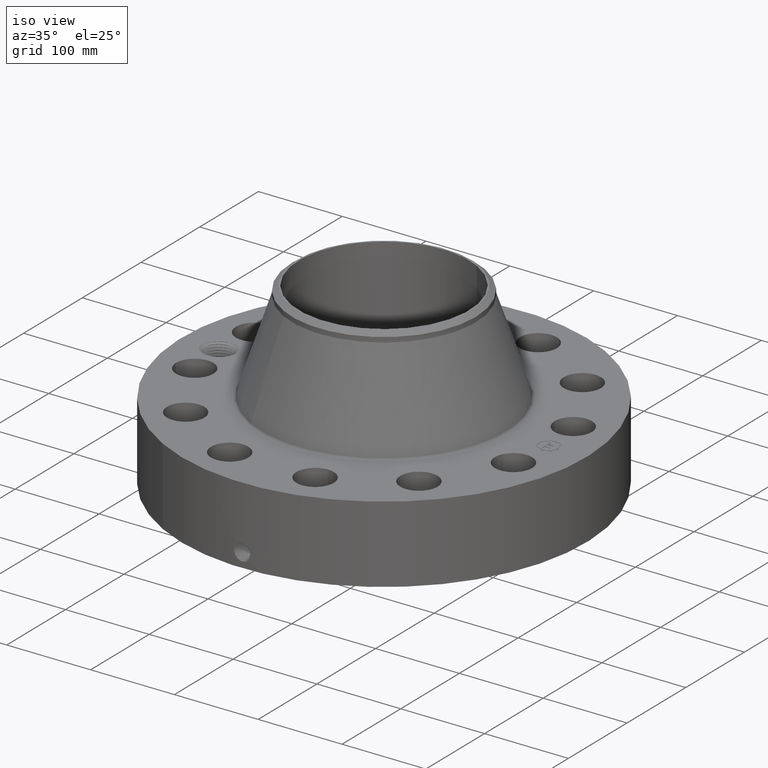
[diagram: clean part render]
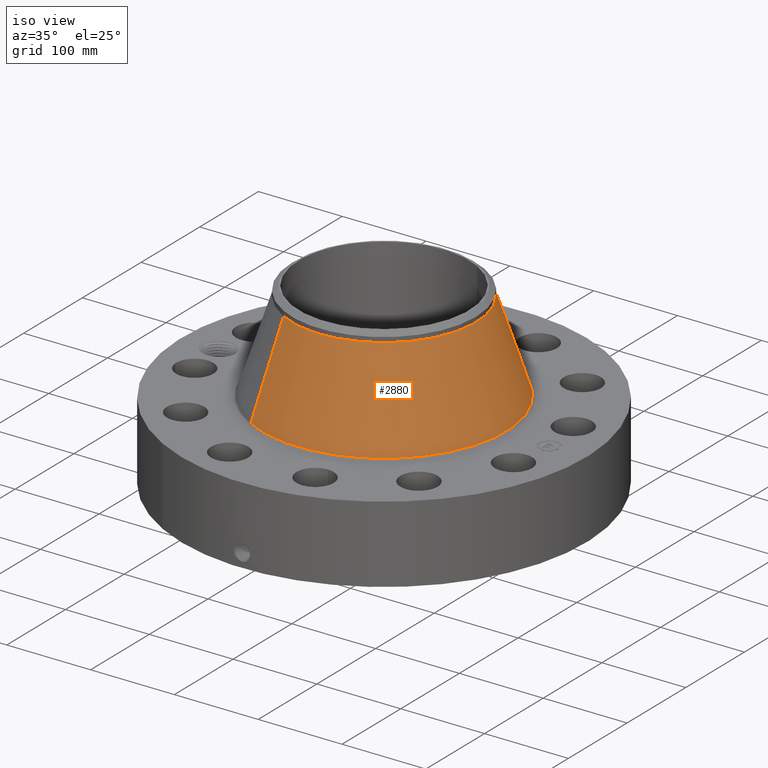
[diagram: same view with one face highlighted and labeled with its STEP entity id]
A machine part, iso view. The second image highlights one B-rep face of the part: STEP entity #2880.
In plain terms, the highlighted conical surface has half-angle 18.315 deg.
Its self-contained STEP definition (entity closure, byte-faithful):
#2136=AXIS2_PLACEMENT_3D('Circle Axis2P3D',#2134,#2135,$) ;
#2853=AXIS2_PLACEMENT_3D('Cone Axis2P3D',#2850,#2851,#2852) ;
#2864=AXIS2_PLACEMENT_3D('Circle Axis2P3D',#2862,#2863,$) ;
#2131=CARTESIAN_POINT('Vertex',(2.74363768536,5.02219509589,3.95229084199)) ;
#2134=CARTESIAN_POINT('Axis2P3D Location',(0.,0.,3.95229084199)) ;
#2138=CARTESIAN_POINT('Vertex',(-2.74363768536,-5.02219509589,3.95229084199)) ;
#2850=CARTESIAN_POINT('Axis2P3D Location',(0.,0.,8.20520136787)) ;
#2855=CARTESIAN_POINT('Line Origine',(2.40617944222,4.40448192523,6.07874610493)) ;
#2859=CARTESIAN_POINT('Vertex',(2.06872119909,3.78676875457,8.20520136787)) ;
#2862=CARTESIAN_POINT('Axis2P3D Location',(0.,0.,8.20520136787)) ;
#2866=CARTESIAN_POINT('Vertex',(-2.06872119909,-3.78676875457,8.20520136787)) ;
#2869=CARTESIAN_POINT('Line Origine',(-2.40617944222,-4.40448192523,6.07874610493)) ;
#2135=DIRECTION('Axis2P3D Direction',(0.,0.,-0.0393700787402)) ;
#2851=DIRECTION('Axis2P3D Direction',(0.,0.,-0.0393700787402)) ;
#2852=DIRECTION('Axis2P3D XDirection',(-0.0188750212049,-0.0345504945626,0.)) ;
#2856=DIRECTION('Vector Direction',(0.00593134297829,0.010857250495,-0.0373756923972)) ;
#2863=DIRECTION('Axis2P3D Direction',(0.,0.,-0.0393700787402)) ;
#2870=DIRECTION('Vector Direction',(-0.00593134297829,-0.010857250495,-0.0373756923972)) ;
#2857=VECTOR('Line Direction',#2856,0.0393700787402) ;
#2871=VECTOR('Line Direction',#2870,0.0393700787402) ;
#2875=ORIENTED_EDGE('',*,*,#2140,.F.) ;
#2876=ORIENTED_EDGE('',*,*,#2861,.T.) ;
#2877=ORIENTED_EDGE('',*,*,#2868,.T.) ;
#2878=ORIENTED_EDGE('',*,*,#2873,.F.) ;
#2880=ADVANCED_FACE('PartBody',(#2879),#2854,.T.) ;
#2137=CIRCLE('generated circle',#2136,5.7227608136) ;
#2865=CIRCLE('generated circle',#2864,4.31500000002) ;
#2854=CONICAL_SURFACE('Cone',#2853,4.31500000002,0.319659137474) ;
#2140=EDGE_CURVE('',#2132,#2139,#2137,.T.) ;
#2861=EDGE_CURVE('',#2132,#2860,#2858,.F.) ;
#2868=EDGE_CURVE('',#2860,#2867,#2865,.T.) ;
#2873=EDGE_CURVE('',#2139,#2867,#2872,.F.) ;
#2874=EDGE_LOOP('',(#2875,#2876,#2877,#2878)) ;
#2879=FACE_OUTER_BOUND('',#2874,.T.) ;
#2858=LINE('Line',#2855,#2857) ;
#2872=LINE('Line',#2869,#2871) ;
#2132=VERTEX_POINT('',#2131) ;
#2139=VERTEX_POINT('',#2138) ;
#2860=VERTEX_POINT('',#2859) ;
#2867=VERTEX_POINT('',#2866) ;